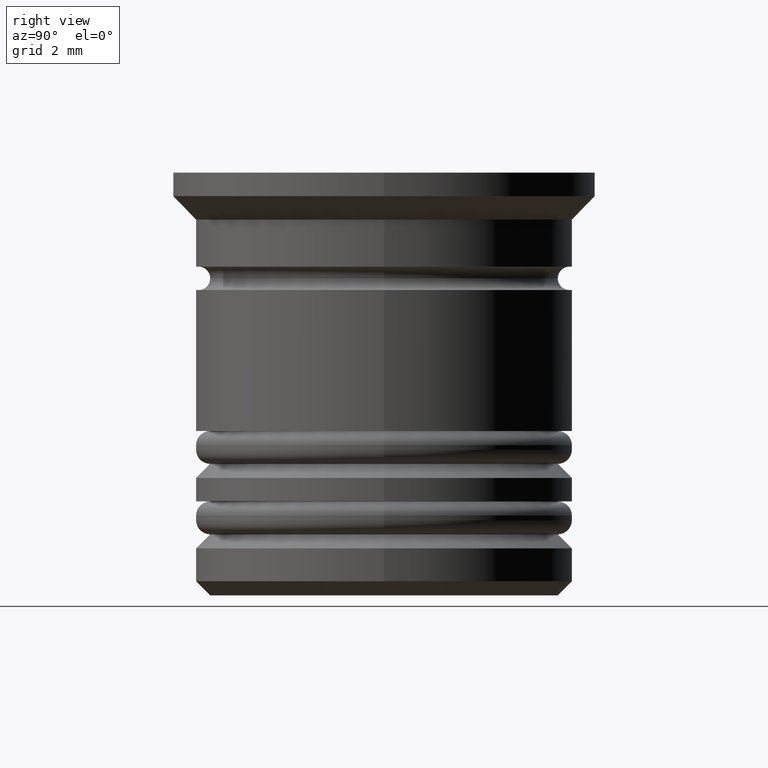
[diagram: clean part render]
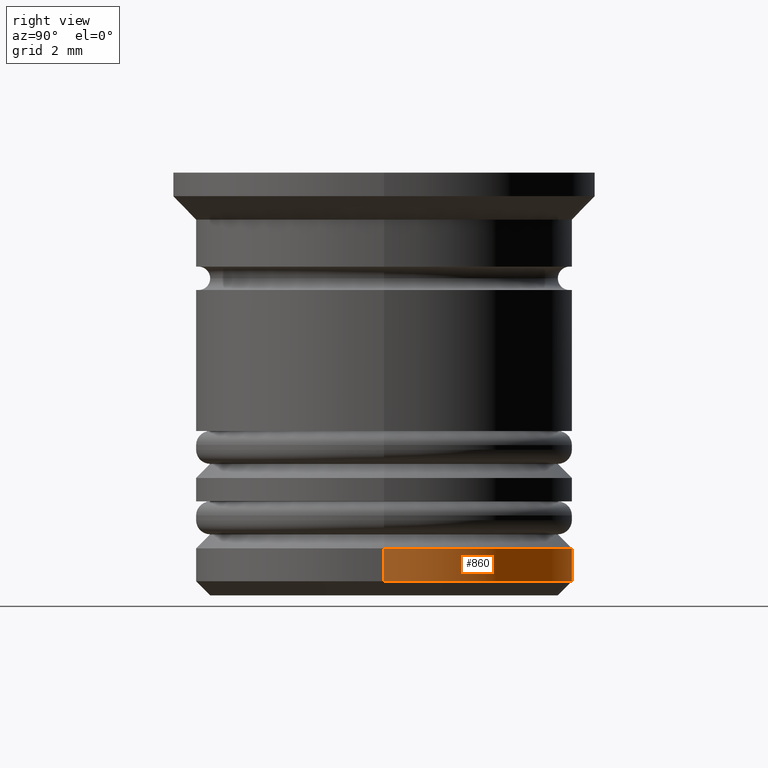
[diagram: same view with one face highlighted and labeled with its STEP entity id]
A machine part, right view. The second image highlights one B-rep face of the part: STEP entity #860.
In plain terms, the highlighted cylindrical surface (partial cylindrical patch) has radius 4 mm, axis along (-0, -0, 1).
Its self-contained STEP definition (entity closure, byte-faithful):
#124 = AXIS2_PLACEMENT_3D ( 'NONE', #1642, #229, #1191 ) ;
#135 = CARTESIAN_POINT ( 'NONE',  ( 4.000000000000000888, 0.000000000000000000, -8.700000000000001066 ) ) ;
#163 = EDGE_LOOP ( 'NONE', ( #1998, #1088, #1261, #620 ) ) ;
#181 = DIRECTION ( 'NONE',  ( 1.000000000000000000, 0.000000000000000000, 0.000000000000000000 ) ) ;
#229 = DIRECTION ( 'NONE',  ( 0.000000000000000000, 0.000000000000000000, -1.000000000000000000 ) ) ;
#230 = VERTEX_POINT ( 'NONE', #1249 ) ;
#249 = CARTESIAN_POINT ( 'NONE',  ( 4.000000000000000888, 0.000000000000000000, -8.000000000000003553 ) ) ;
#317 = EDGE_CURVE ( 'NONE', #230, #1393, #913, .T. ) ;
#344 = EDGE_CURVE ( 'NONE', #617, #230, #1926, .T. ) ;
#363 = FACE_OUTER_BOUND ( 'NONE', #163, .T. ) ;
#590 = CARTESIAN_POINT ( 'NONE',  ( -4.000000000000000888, 4.898587196589413815E-16, 0.000000000000000000 ) ) ;
#617 = VERTEX_POINT ( 'NONE', #135 ) ;
#620 = ORIENTED_EDGE ( 'NONE', *, *, #1099, .F. ) ;
#628 = DIRECTION ( 'NONE',  ( -0.000000000000000000, -0.000000000000000000, 1.000000000000000000 ) ) ;
#662 = LINE ( 'NONE', #789, #681 ) ;
#681 = VECTOR ( 'NONE', #1432, 1000.000000000000000 ) ;
#765 = CARTESIAN_POINT ( 'NONE',  ( -4.000000000000000888, 4.898587196589413815E-16, -8.000000000000003553 ) ) ;
#770 = AXIS2_PLACEMENT_3D ( 'NONE', #1748, #1784, #181 ) ;
#789 = CARTESIAN_POINT ( 'NONE',  ( 4.000000000000000888, 0.000000000000000000, 0.000000000000000000 ) ) ;
#860 = ADVANCED_FACE ( 'NONE', ( #363 ), #1122, .T. ) ;
#913 = LINE ( 'NONE', #590, #1901 ) ;
#994 = VERTEX_POINT ( 'NONE', #249 ) ;
#1088 = ORIENTED_EDGE ( 'NONE', *, *, #317, .T. ) ;
#1095 = CARTESIAN_POINT ( 'NONE',  ( 0.000000000000000000, 0.000000000000000000, -8.700000000000001066 ) ) ;
#1099 = EDGE_CURVE ( 'NONE', #617, #994, #662, .T. ) ;
#1122 = CYLINDRICAL_SURFACE ( 'NONE', #770, 4.000000000000000888 ) ;
#1191 = DIRECTION ( 'NONE',  ( -1.000000000000000000, 0.000000000000000000, 0.000000000000000000 ) ) ;
#1228 = DIRECTION ( 'NONE',  ( -0.000000000000000000, -0.000000000000000000, 1.000000000000000000 ) ) ;
#1249 = CARTESIAN_POINT ( 'NONE',  ( -4.000000000000000888, 4.898587196589413815E-16, -8.700000000000001066 ) ) ;
#1261 = ORIENTED_EDGE ( 'NONE', *, *, #1855, .T. ) ;
#1263 = DIRECTION ( 'NONE',  ( -1.000000000000000000, 0.000000000000000000, 0.000000000000000000 ) ) ;
#1371 = AXIS2_PLACEMENT_3D ( 'NONE', #1095, #628, #1263 ) ;
#1393 = VERTEX_POINT ( 'NONE', #765 ) ;
#1432 = DIRECTION ( 'NONE',  ( -0.000000000000000000, -0.000000000000000000, 1.000000000000000000 ) ) ;
#1642 = CARTESIAN_POINT ( 'NONE',  ( 0.000000000000000000, 0.000000000000000000, -8.000000000000003553 ) ) ;
#1748 = CARTESIAN_POINT ( 'NONE',  ( 0.000000000000000000, 0.000000000000000000, 0.000000000000000000 ) ) ;
#1784 = DIRECTION ( 'NONE',  ( -0.000000000000000000, -0.000000000000000000, 1.000000000000000000 ) ) ;
#1808 = CIRCLE ( 'NONE', #124, 4.000000000000000888 ) ;
#1855 = EDGE_CURVE ( 'NONE', #1393, #994, #1808, .T. ) ;
#1901 = VECTOR ( 'NONE', #1228, 1000.000000000000000 ) ;
#1926 = CIRCLE ( 'NONE', #1371, 4.000000000000000888 ) ;
#1998 = ORIENTED_EDGE ( 'NONE', *, *, #344, .T. ) ;